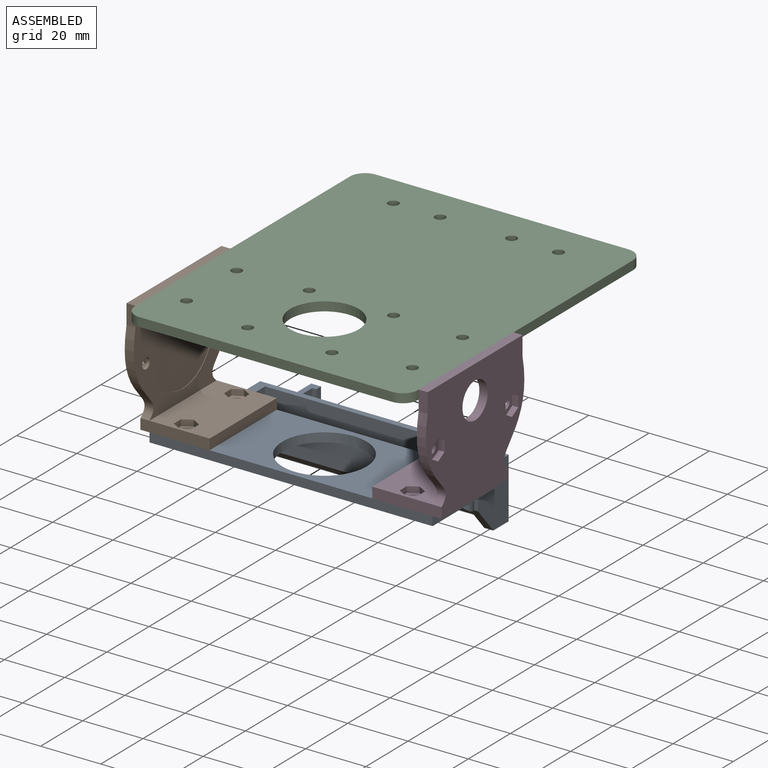
[diagram: assembled view]
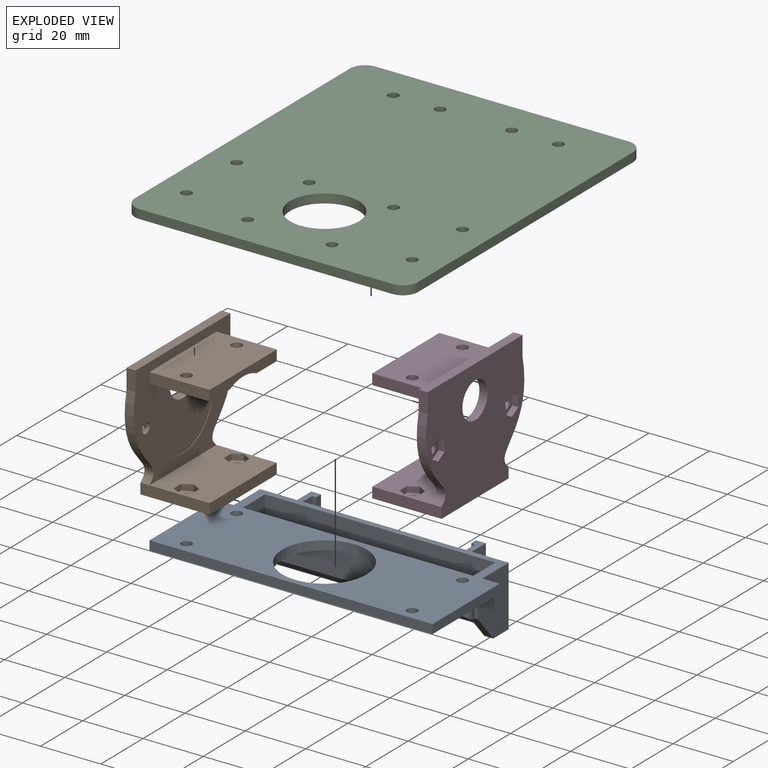
[diagram: exploded view]
GUIDED TOUR — MATED ASSEMBLY (Onshape document c985740be21e74d5825f9287, AutoMate assembly c985740be21e74d5825f9287_e172210ec3c14c8daed284c1_c1cd281b246265ebc9fb4369_default)

This assembly has 4 components, labeled P0..P3 below (a component is one placed occurrence of a part; the same part can appear more than once), held together by 3 mates. A mate is a constraint between two components; its type names the relative motion it leaves free:
  FASTENED — locks the two components together rigidly (no relative motion).
Axis/direction vectors are unit vectors and 'through' points are millimeter coordinates, both in the assembly's world frame.

MATES
  1. FASTENED "Fastened 2": P2 <-> P3, direction (0.000, 0.000, -1.000) through (40.38, 10.09, 27.55) mm
  2. FASTENED "Fastened 1": P1 <-> P2, direction (0.000, 0.000, 1.000) through (-34.62, 10.09, 27.55) mm
  3. FASTENED "Fastened 3": P3 <-> P0, direction (0.000, 0.000, 1.000) through (40.38, 10.09, -9.95) mm

ASSEMBLY ORDER
  1. P3 — the base component [order verified]
  2. P1 [order verified]
  3. P2 [order verified]
  4. P0 [order verified]
Order-tag legend:
  [order verified] — this step's position reverses a verified removal order: the component was checked to insert without passing through the ones already placed.

Of the 4 components, 1 carries the full construction recipe — the FeatureScript program that regenerates the part's solid from scratch; the rest are supplied as boundary geometry only.
Each toured component is shown spotlighted twice — in the assembled view, then in the exploded view, where a leader line traces a displaced component back to its assembled socket (saturated green if recipe-attached, orange if geometry-only; every other component desaturated gray) — followed by its recipe or geometry summary and the mates that hold it.
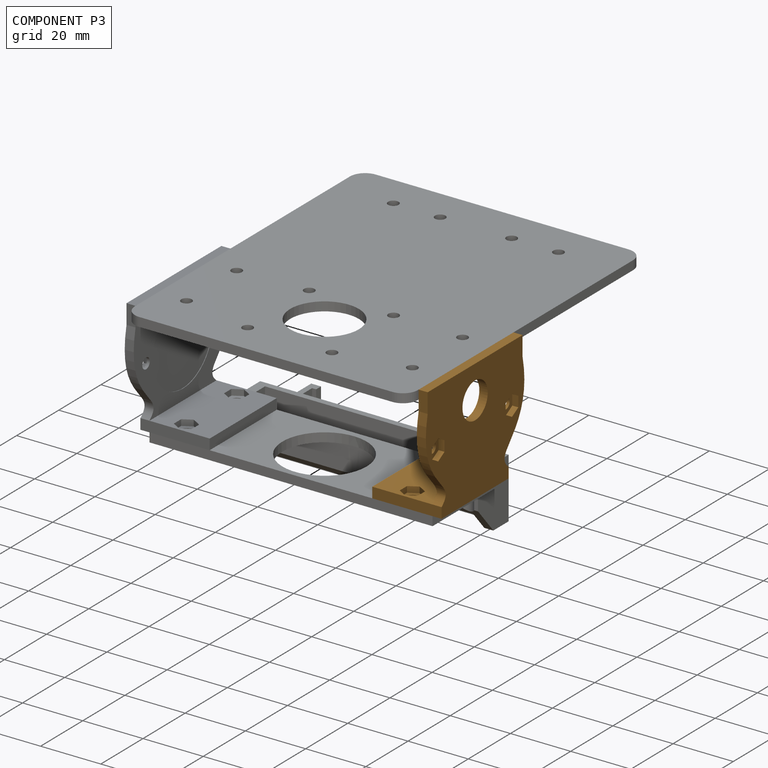
[diagram: component P3 — assembled]
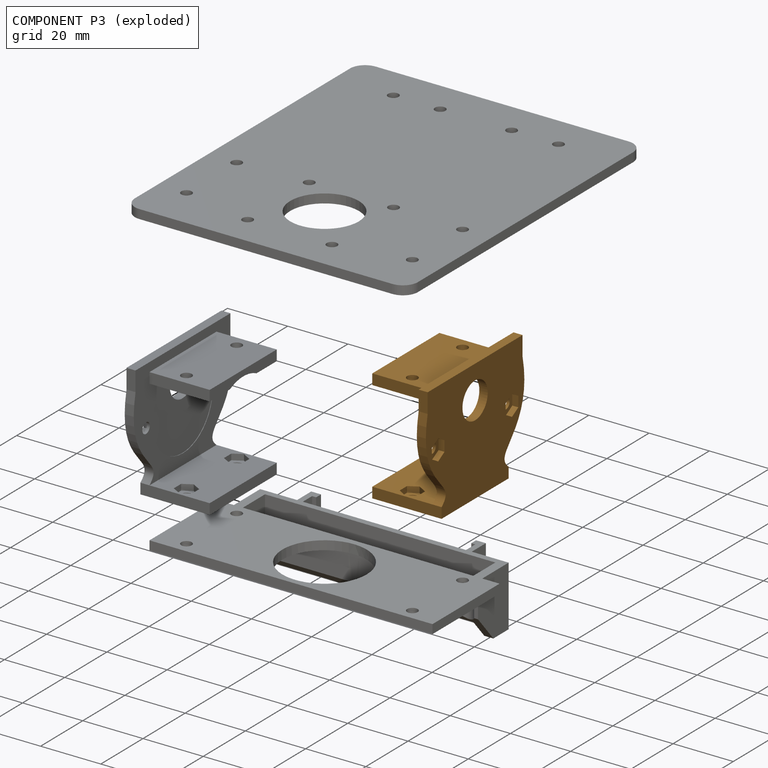
[diagram: component P3 — exploded]
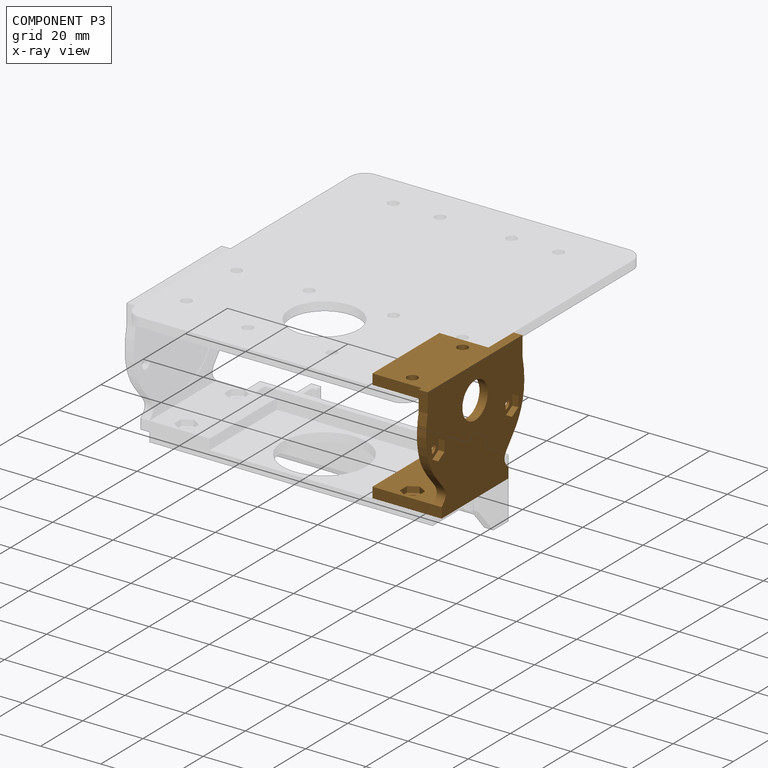
[diagram: component P3 — x-ray view]
COMPONENT P3 — geometry summary (no construction recipe available for this part):
  bounding box: 52.3 x 40.5 x 23.0 mm
  B-rep topology: 1 solid, 69 faces, 364 edges
  volume: 8204 mm^3 (17% of its bounding box)
  symmetry: mirror-symmetric across its x mid-plane
Held by: FASTENED mate "Fastened 2" to P2; FASTENED mate "Fastened 3" to P0.
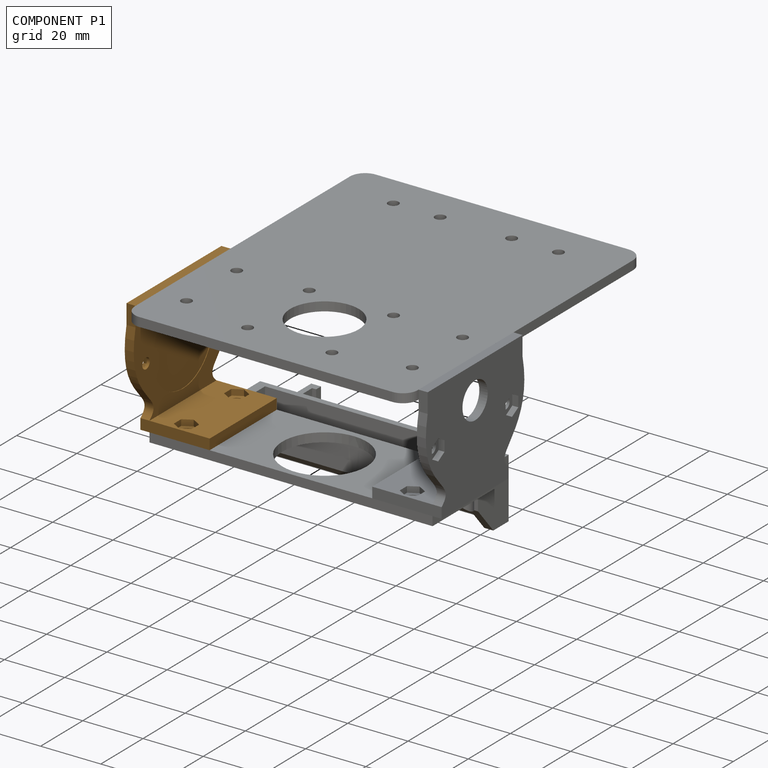
[diagram: component P1 — assembled]
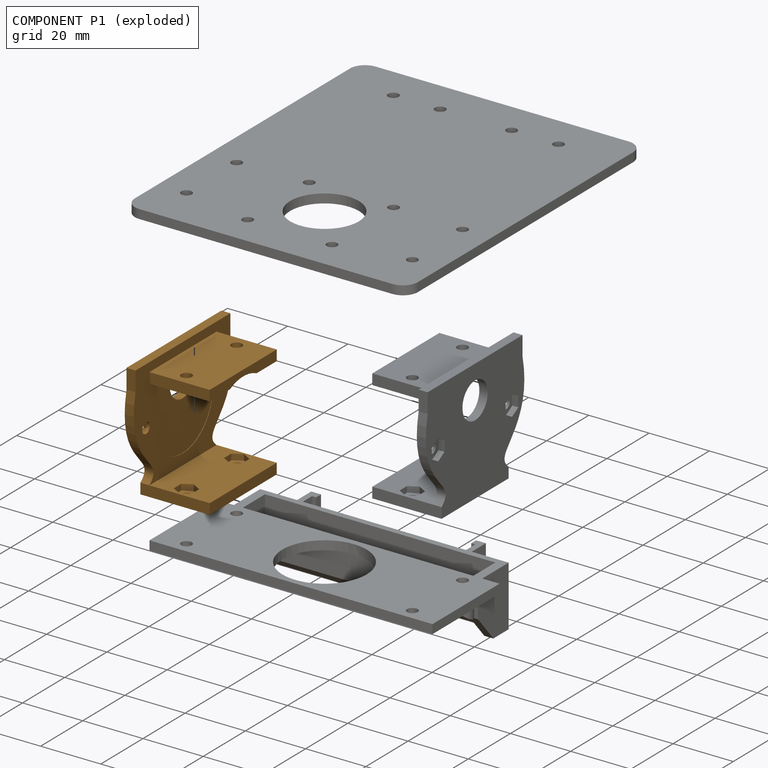
[diagram: component P1 — exploded]
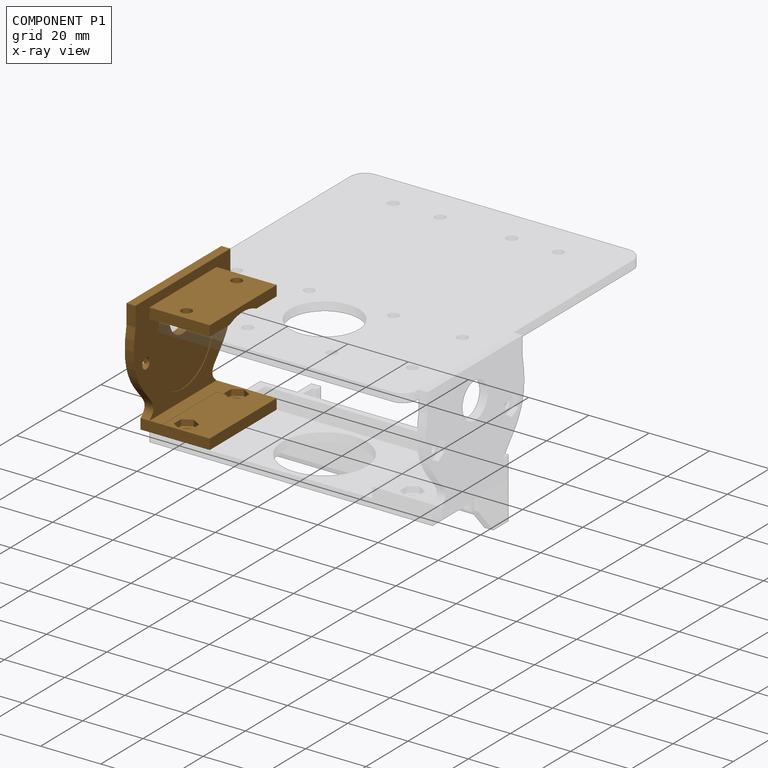
[diagram: component P1 — x-ray view]
COMPONENT P1 — geometry summary (no construction recipe available for this part):
  bounding box: 52.3 x 40.5 x 23.0 mm
  B-rep topology: 1 solid, 69 faces, 364 edges
  volume: 8204 mm^3 (17% of its bounding box)
  symmetry: mirror-symmetric across its x mid-plane
Held by: FASTENED mate "Fastened 1" to P2.
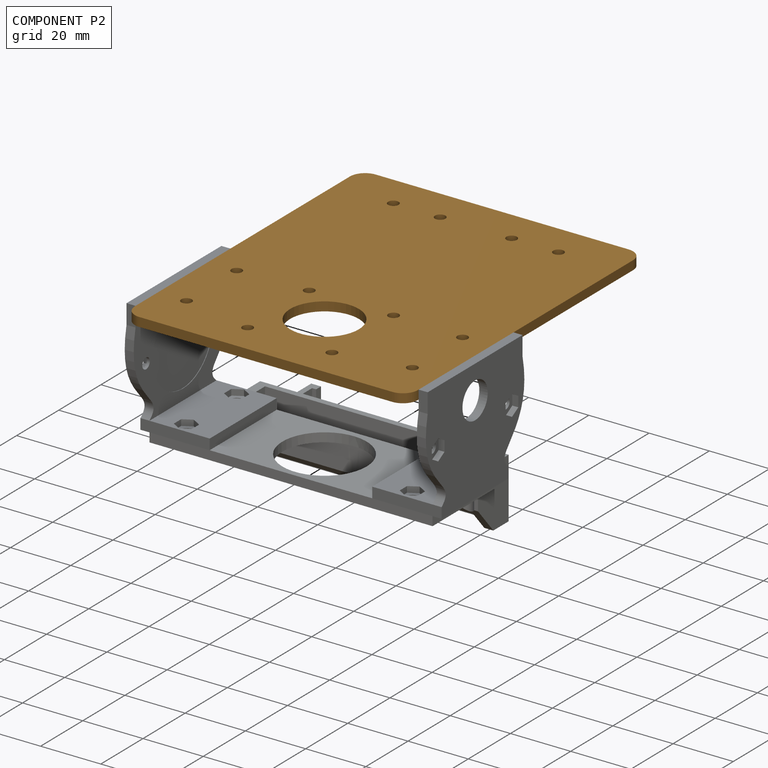
[diagram: component P2 — assembled]
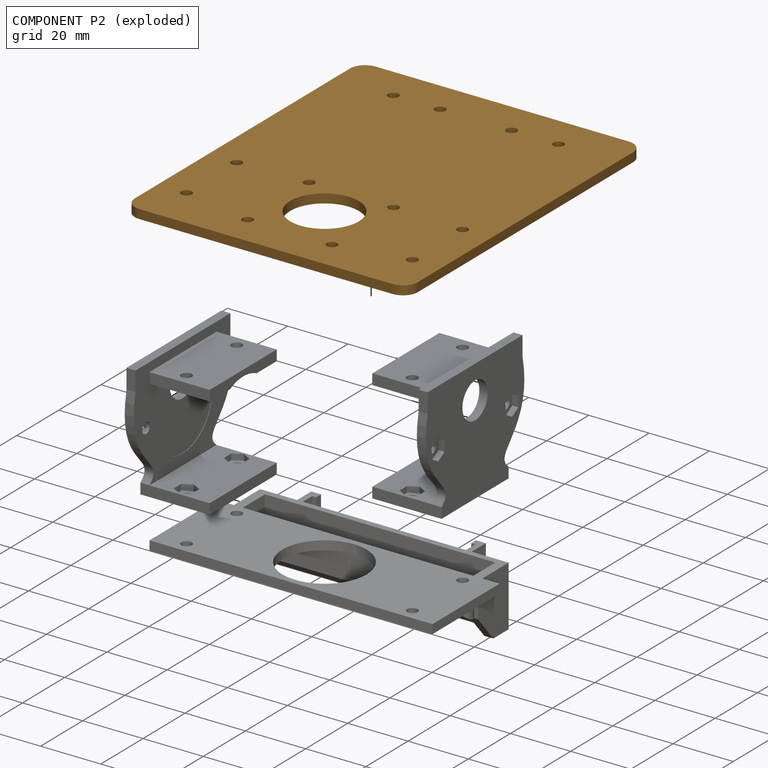
[diagram: component P2 — exploded]
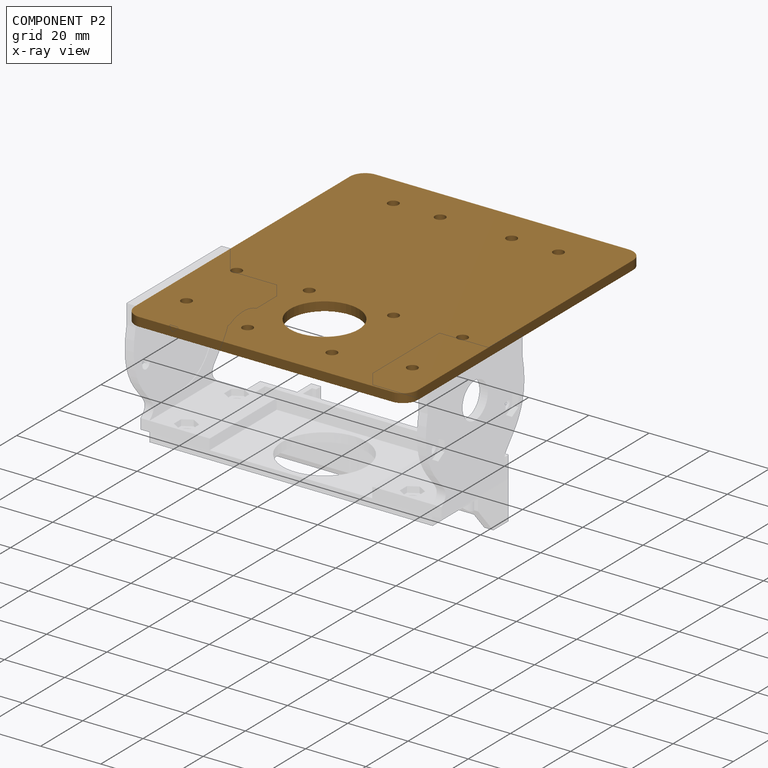
[diagram: component P2 — x-ray view]
COMPONENT P2 — geometry summary (no construction recipe available for this part):
  bounding box: 112.0 x 94.0 x 3.0 mm
  B-rep topology: 1 solid, 23 faces, 126 edges
  volume: 29944 mm^3 (95% of its bounding box)
  symmetry: 2-fold rotationally symmetric about the y axis; mirror-symmetric across its x mid-plane, z mid-plane
Held by: FASTENED mate "Fastened 2" to P3; FASTENED mate "Fastened 1" to P1.
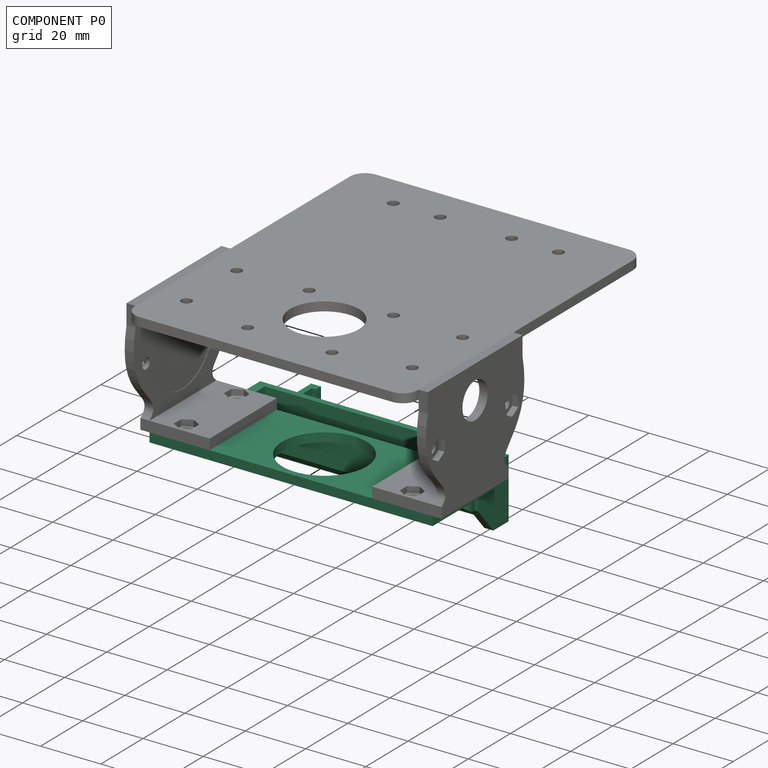
[diagram: component P0 — assembled]
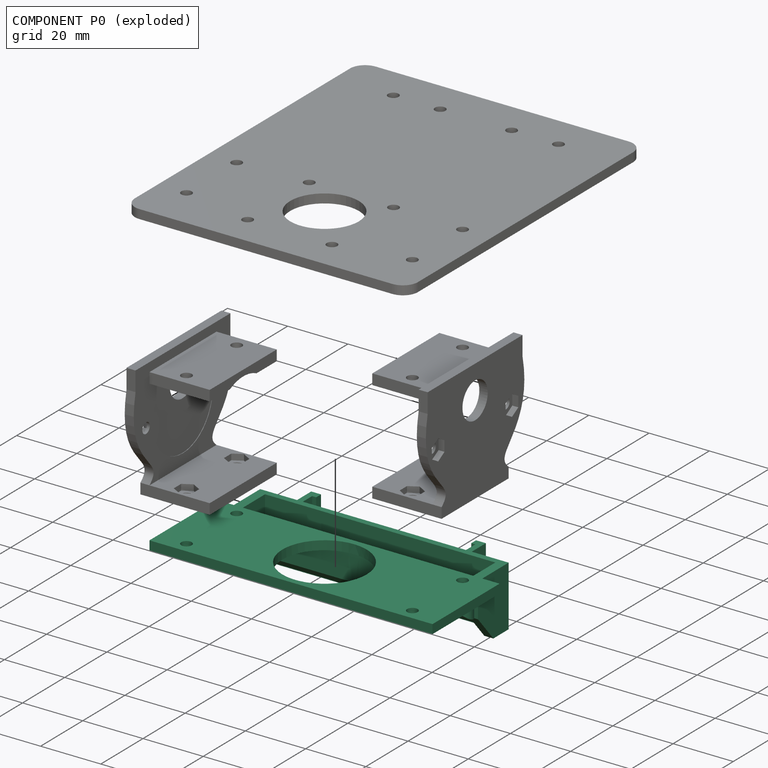
[diagram: component P0 — exploded]
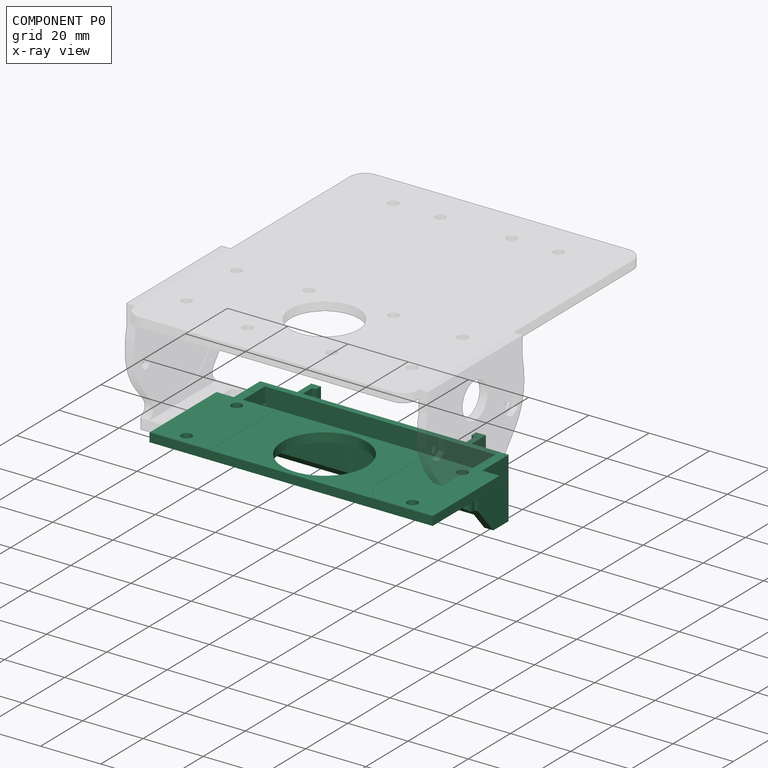
[diagram: component P0 — x-ray view]
COMPONENT P0 — recipe-attached (CADFS 00823968, mesh-verified: the recipe's output STEP matches this component's geometry to below the mesh-comparison resolution (tessellation chordal tolerance ~0.163 mm)).
Held by: FASTENED mate "Fastened 3" to P3.
Construction recipe (FeatureScript — the CAD program that rebuilds this solid; sketch coordinates are in the units given by the * unit suffixes, e.g. mm):

FeatureScript 1511;
import(path : "onshape/std/geometry.fs", version : "1511.0");
import(path : "onshape/std/common.fs", version : "1511.0");
const mm = millimeter;
const VERTEX = EntityType.VERTEX;
const EDGE = EntityType.EDGE;
const FACE = EntityType.FACE;
const BODY = EntityType.BODY;
function v(x, y){return vector(x, y);}
function OD(order){return orderDisambiguation(order);}
function OSD(set){return originalSetDisambiguation(set);}
function TD(topology){return topologyDisambiguation(topology);}
function TDD(query){return trueDependencyDisambiguation(query);}
function sQuery(a, b, c) {return sketchEntityQuery(a, b, c);}

annotation { "Feature Type Name" : "Feature", "Feature Type Description" : "" }
export const myFeature = defineFeature(function(context is Context, id is Id, definition is map)
    precondition{}
    {
        {
            var Q0;
            Q0=qCreatedBy(makeId("Top.planeOp"),FACE);
            var sketch = newSketch(context, id + "F0", { "sketchPlane" : qUnion([Q0])});
            skLineSegment(sketch, "E0.bottom", {"start": v(47, 15.9) * mm, "end": v(-47, 15.9) * mm});
            skLineSegment(sketch, "E0.top", {"start": v(47, -15.9) * mm, "end": v(-47, -15.9) * mm});
            skLineSegment(sketch, "E0.left", {"start": v(47, 15.9) * mm, "end": v(47, -15.9) * mm});
            skLineSegment(sketch, "E0.right", {"start": v(-47, 15.9) * mm, "end": v(-47, -15.9) * mm});
            skPoint(sketch, "E0.middle", {"position": v(0, 0) * mm});
            skCircle(sketch, "E1", {"center": v(-37.5, 11.9) * mm, "radius": 1.75 * mm});
            skCircle(sketch, "E2", {"center": v(-37.5, -11.9) * mm, "radius": 1.75 * mm});
            skCircle(sketch, "E3", {"center": v(37.5, -11.9) * mm, "radius": 1.75 * mm});
            skCircle(sketch, "E4", {"center": v(37.5, 11.9) * mm, "radius": 1.75 * mm});
            skSolve(sketch);
        }
        {
            var Q0;
            Q0=qSketchRegion(id+"F0",true);
            extrude(context, id + "F1", {"entities" : qUnion([Q0]), "depth" : 3 * mm, "offsetDistance" : 25 * mm});
        }
        {
            var Q0;
            Q0=qCreatedBy(makeId("Top.planeOp"),FACE);
            var sketch = newSketch(context, id + "F2", { "sketchPlane" : qUnion([Q0])});
            skLineSegment(sketch, "E5.bottom", {"start": v(38.25, -15.9) * mm, "end": v(-38.25, -15.9) * mm});
            skLineSegment(sketch, "E5.top", {"start": v(38.25, -26.4) * mm, "end": v(-38.25, -26.4) * mm});
            skLineSegment(sketch, "E5.left", {"start": v(38.25, -15.9) * mm, "end": v(38.25, -26.4) * mm});
            skLineSegment(sketch, "E5.right", {"start": v(-38.25, -15.9) * mm, "end": v(-38.25, -26.4) * mm});
            skPoint(sketch, "E5.middle", {"position": v(0, -21.15) * mm});
            skLineSegment(sketch, "E6.0", {"start": v(41.25, -13.9) * mm, "end": v(-41.25, -13.9) * mm});
            skLineSegment(sketch, "E6.2", {"start": v(41.25, -28.4) * mm, "end": v(-41.25, -28.4) * mm});
            skLineSegment(sketch, "E7.0", {"start": v(47, -15.9) * mm, "end": v(-47, -15.9) * mm, "construction": true});
            skLineSegment(sketch, "E8", {"start": v(41.25, -13.9) * mm, "end": v(41.25, -28.4) * mm});
            skLineSegment(sketch, "E9", {"start": v(-41.25, -13.9) * mm, "end": v(-41.25, -28.4) * mm});
            skLineSegment(sketch, "E10", {"start": v(29, -28.4) * mm, "end": v(29, -35.1) * mm});
            skLineSegment(sketch, "E11", {"start": v(29, -35.1) * mm, "end": v(25.75, -35.1) * mm});
            skLineSegment(sketch, "E12", {"start": v(25.75, -35.1) * mm, "end": v(25.75, -32.8) * mm});
            skLineSegment(sketch, "E13", {"start": v(25.75, -32.8) * mm, "end": v(27.1, -32.8) * mm});
            skLineSegment(sketch, "E14", {"start": v(27.1, -32.8) * mm, "end": v(27.1, -28.4) * mm});
            skLineSegment(sketch, "E15.MirrorCS", {"start": v(-29, -28.4) * mm, "end": v(-29, -35.1) * mm});
            skLineSegment(sketch, "E16.MirrorCS", {"start": v(-27.1, -32.8) * mm, "end": v(-27.1, -28.4) * mm});
            skLineSegment(sketch, "E17.MirrorCS", {"start": v(-25.75, -32.8) * mm, "end": v(-27.1, -32.8) * mm});
            skLineSegment(sketch, "E18.MirrorCS", {"start": v(-25.75, -35.1) * mm, "end": v(-25.75, -32.8) * mm});
            skLineSegment(sketch, "E19.MirrorCS", {"start": v(-29, -35.1) * mm, "end": v(-25.75, -35.1) * mm});
            skSolve(sketch);
        }
        {
            var Q0;
            Q0=makeQuery(id+"F2.imprint","IMPRINT",FACE,{"disambiguationData":[TD([[makeQuery(id+"F2.imprint","IMPRINT",EDGE,{"derivedFrom":sQuery(id+"F2.wireOp",EDGE,"E5.bottom")}),-1.0]])]});
            var Q1;
            {var subQ0=sQuery(id+"F2.wireOp",EDGE,"E15.MirrorCS");Q1=makeQuery(id+"F2.imprint","IMPRINT",FACE,{"disambiguationData":[TD([[makeQuery(id+"F2.imprint","IMPRINT",EDGE,{"derivedFrom":subQ0}),1.0]])]});}
            var Q2;
            {var subQ0=sQuery(id+"F2.wireOp",EDGE,"E10");Q2=makeQuery(id+"F2.imprint","IMPRINT",FACE,{"disambiguationData":[TD([[makeQuery(id+"F2.imprint","IMPRINT",EDGE,{"derivedFrom":subQ0}),-1.0]])]});}
            extrude(context, id + "F3", {"entities" : qUnion([Q0, Q1, Q2]), "operationType" : NewBodyOperationType.ADD, "depth" : 20 * mm, "offsetDistance" : 25 * mm});
        }
        {
            var Q0;
            Q0=makeQuery(id+"F3.opExtrude","SWEPT_FACE",FACE,{"disambiguationData":[OSD([sQuery(id+"F2.wireOp",EDGE,"E8")])]});
            var sketch = newSketch(context, id + "F4", { "sketchPlane" : qUnion([Q0])});
            skLineSegment(sketch, "E20.0", {"start": v(-13.9, 20) * mm, "end": v(-13.9, 3) * mm});
            skLineSegment(sketch, "E21", {"start": v(-21.15, 20) * mm, "end": v(-13.9, 11.5) * mm});
            skSolve(sketch);
        }
        {
            var Q0;
            {var subQ3=sQuery(id+"F4.wireOp",EDGE,"E21");Q0=makeQuery(id+"F4.imprint","IMPRINT",FACE,{"disambiguationData":[TD([[makeQuery(id+"F4.imprint","IMPRINT",EDGE,{"derivedFrom":subQ3}),1.0]])]});}
            var Q1;
            Q1=makeQuery(id+"F3.opExtrude","SWEPT_FACE",FACE,{"disambiguationData":[OSD([sQuery(id+"F2.wireOp",EDGE,"E9")])]});
            extrude(context, id + "F5", {"entities" : qUnion([Q0]), "operationType" : NewBodyOperationType.REMOVE, "endBound" : BoundingType.UP_TO_SURFACE, "oppositeDirection" : true, "depth" : 25 * mm, "endBoundEntityFace" : qUnion([Q1]), "offsetDistance" : 25 * mm});
        }
        {
            var Q0;
            Q0=makeQuery(id+"F3.boolean.opBoolean","MERGE",FACE,{"derivedFrom":[makeQuery(id+"F1.opExtrude","CAP_FACE",FACE,{"disambiguationData":[OSD([sQuery(id+"F0.wireOp",EDGE,"E0.bottom"),sQuery(id+"F0.wireOp",EDGE,"E0.top"),sQuery(id+"F0.wireOp",EDGE,"E0.left"),sQuery(id+"F0.wireOp",EDGE,"E0.right"),sQuery(id+"F0.wireOp",EDGE,"E1"),sQuery(id+"F0.wireOp",EDGE,"E2"),sQuery(id+"F0.wireOp",EDGE,"E3"),sQuery(id+"F0.wireOp",EDGE,"E4")])],"isStart":true}),makeQuery(id+"F3.opExtrude","CAP_FACE",FACE,{"disambiguationData":[OSD([sQuery(id+"F2.wireOp",EDGE,"E5.bottom"),sQuery(id+"F2.wireOp",EDGE,"E5.top"),sQuery(id+"F2.wireOp",EDGE,"E5.left"),sQuery(id+"F2.wireOp",EDGE,"E5.right"),sQuery(id+"F2.wireOp",EDGE,"E6.0"),sQuery(id+"F2.wireOp",EDGE,"E6.1"),sQuery(id+"F2.wireOp",EDGE,"E6.2"),sQuery(id+"F2.wireOp",EDGE,"E6.3")])],"isStart":true})]});
            var sketch = newSketch(context, id + "F6", { "sketchPlane" : qUnion([Q0])});
            skCircle(sketch, "E22", {"center": v(0, 0) * mm, "radius": 14 * mm});
            skSolve(sketch);
        }
        {
            var Q0;
            Q0=qSketchRegion(id+"F6",true);
            extrude(context, id + "F7", {"entities" : qUnion([Q0]), "operationType" : NewBodyOperationType.REMOVE, "oppositeDirection" : true, "depth" : 25 * mm, "offsetDistance" : 25 * mm});
        }
        {
            var Q0;
            Q0=makeQuery(id+"F1.opExtrude","CAP_FACE",FACE,{"disambiguationData":[OSD([sQuery(id+"F0.wireOp",EDGE,"E0.bottom"),sQuery(id+"F0.wireOp",EDGE,"E0.top"),sQuery(id+"F0.wireOp",EDGE,"E0.left"),sQuery(id+"F0.wireOp",EDGE,"E0.right"),sQuery(id+"F0.wireOp",EDGE,"E1"),sQuery(id+"F0.wireOp",EDGE,"E2"),sQuery(id+"F0.wireOp",EDGE,"E3"),sQuery(id+"F0.wireOp",EDGE,"E4")])],"isStart":false});
            var sketch = newSketch(context, id + "F8", { "sketchPlane" : qUnion([Q0])});
            skCircle(sketch, "E23.0", {"center": v(37.5, -11.9) * mm, "radius": 3.15 * mm});
            skCircle(sketch, "E24.0", {"center": v(-37.5, -11.9) * mm, "radius": 3.15 * mm});
            skSolve(sketch);
        }
        {
            var Q0;
            Q0=qSketchRegion(id+"F8",true);
            extrude(context, id + "F9", {"entities" : qUnion([Q0]), "operationType" : NewBodyOperationType.REMOVE, "depth" : 25 * mm, "offsetDistance" : 25 * mm});
        }
    });
PROVENANCE & LICENSES
Assembly (occurrences, transforms, mates, per-part STEP geometry): AutoMate dataset, Zenodo record 7776208, CC0.
Construction recipes: CADFS (HuggingFace VladPyatov/CADFS, CC-BY-4.0, layered over the ABC dataset), FeatureScript reconstruction programs keyed by ABC model id.
Join: ABC meta listings map ABC model id -> Onshape documentId; within a shared document, parts are matched by geometric signature (bounding-box dims + volume at 0.1% relative tolerance, exact B-rep face/solid counts).
Verification: 1 of this assembly's 4 components carries a recipe attachment, and every attachment is mesh-verified: the CADFS STEP and the AutoMate member STEP were compared as meshes in their shared local frame (symmetric sampled-point-to-mesh distance); worst across the 1 attachment: below the mesh-comparison resolution (tessellation chordal tolerance ~0.163 mm) on a 109 mm part.
Renders: orthographic iso camera (az 35 / el 25); the floor grid conveys scale (grid pitch printed in each image; no ruler). In the exploded view each component is displaced by its stored offset vector: the offsets alone carry the explosion direction (mate normal/axis signs are not orientation cues and do not encode it), and separation distances are assigned per mate-chain, not proportionally to assembly-order depth.
